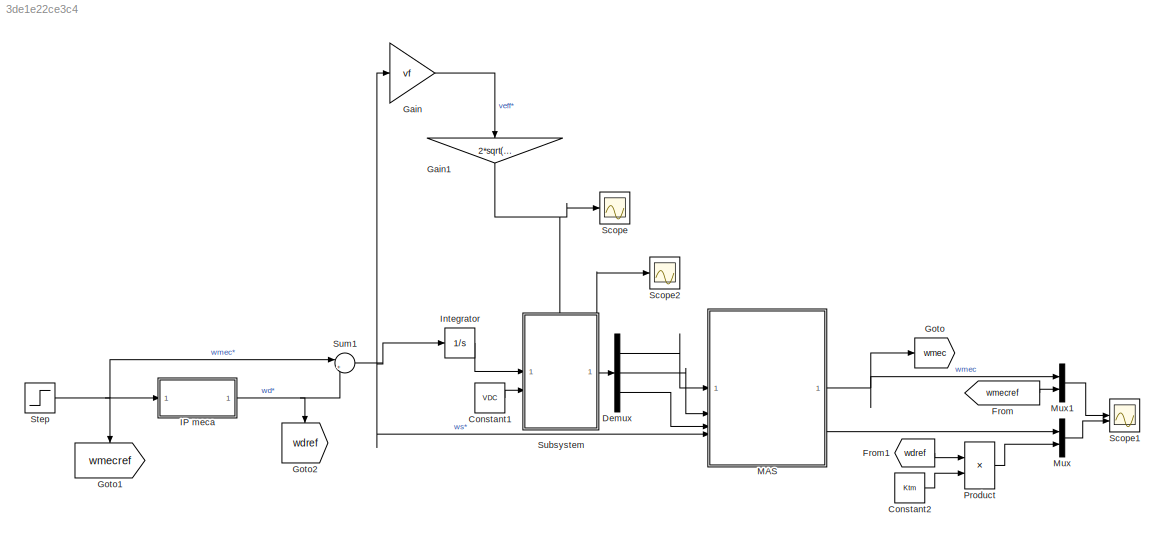
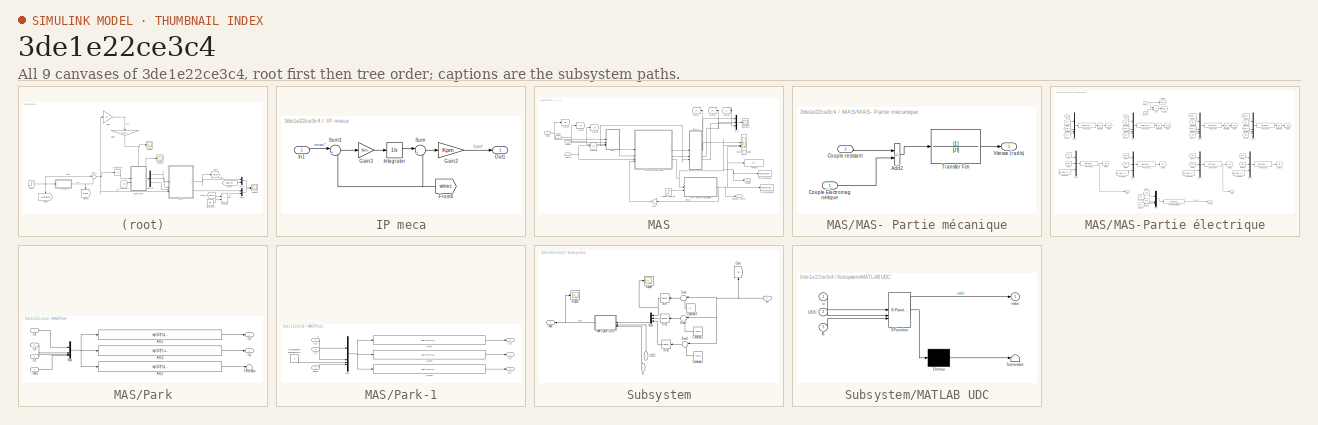
[diagram: thumbnail index - all 9 canvases of the model, root first then tree order]
MODEL slx_3de1e22ce3c4
KIND model
CONFIG AbsTol = auto
CONFIG EnableMultiTasking = off
CONFIG FixedStep = 1e-4
CONFIG MaxStep = auto
CONFIG MinStep = auto
CONFIG RelTol = 1e-3
CONFIG SampleTimeConstraint = Unconstrained
CONFIG SolverName = ode1
CONFIG StartTime = 0.0
CONFIG StopTime = 10.0
BLOCK [Constant] Constant1
  Value = VDC
BLOCK [Constant] Constant2
  Value = Ktm
BLOCK [Demux] Demux
  Outputs = 3
BLOCK [From] From
  GotoTag = wmecref
BLOCK [From] From1
  GotoTag = wdref
BLOCK [Gain] Gain
  Gain = vf
BLOCK [Gain] Gain1
  Gain = 2*sqrt(2)/VDC
  NameLocation = left
BLOCK [Goto] Goto
  GotoTag = wmec
  TagVisibility = global
BLOCK [Goto] Goto1
  GotoTag = wmecref
  NameLocation = left
BLOCK [Goto] Goto2
  GotoTag = wdref
  NameLocation = left
BLOCK [SubSystem] IP meca
BLOCK [From] IP meca/From6
  GotoTag = wmec
  NameLocation = top
  TagVisibility = global
BLOCK [Gain] IP meca/Gain2
  Gain = Kpm
BLOCK [Gain] IP meca/Gain3
  Gain = Kim
BLOCK [Inport] IP meca/In1
  IconDisplay = Signal name
BLOCK [Integrator] IP meca/Integrator
BLOCK [Outport] IP meca/Out1
  IconDisplay = Signal name
BLOCK [Sum] IP meca/Sum
  Inputs = |+-
BLOCK [Sum] IP meca/Sum3
  Inputs = |+-
BLOCK [Integrator] Integrator
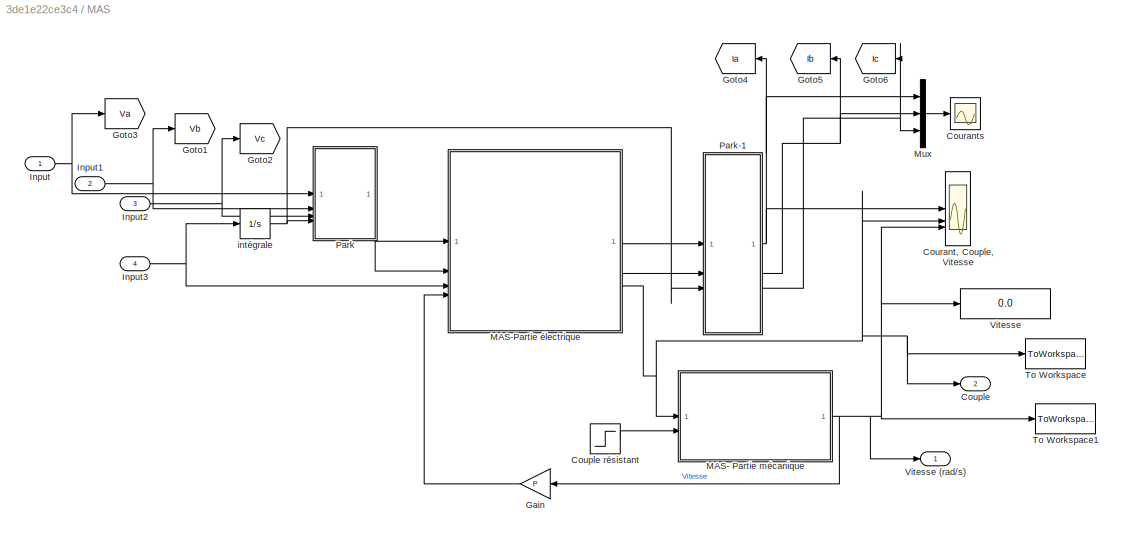
BLOCK [SubSystem] MAS
BLOCK [Outport] MAS/Couple
  IconDisplay = Signal name
  Port = 2
BLOCK [Step] MAS/Couple résistant
  After = 2
  SampleTime = 0
  Time = 6
BLOCK [Scope] MAS/Courant, Couple, Vitesse
  Floating = off
  NumInputPorts = 3
  ScopeSpecificationString = Simulink.scopes.TimeScopeBlockCfg('CurrentConfiguration', extmgr.ConfigurationSet(extmgr.Configuration('Core','General UI',true,'FigureColor',[1 1 1]),extmgr.Configuration('Core','Source UI',true),extmgr.Configuration('Sources','WiredSimulink',true,'DataLoggingVariableName','ScopeData1'),extmgr.Configuration('Visuals','Time Domain',true,'SerializedDisplays',{struct('MinYLimReal','-49.07838','MaxYL...<+3304ch>
BLOCK [Scope] MAS/Courants
  Floating = off
  NumInputPorts = 1
  ScopeSpecificationString = Simulink.scopes.TimeScopeBlockCfg('CurrentConfiguration', extmgr.ConfigurationSet(extmgr.Configuration('Core','General UI',true),extmgr.Configuration('Core','Source UI',true),extmgr.Configuration('Sources','WiredSimulink',true),extmgr.Configuration('Visuals','Time Domain',true,'SerializedDisplays',{struct('MinYLimReal','-78440392790425535894164667339636420366930210172161155543034117746784134921959...<+3148ch>
BLOCK [Gain] MAS/Gain
  Gain = P
BLOCK [Goto] MAS/Goto1
  GotoTag = Vb
BLOCK [Goto] MAS/Goto2
  GotoTag = Vc
BLOCK [Goto] MAS/Goto3
  GotoTag = Va
BLOCK [Goto] MAS/Goto4
  GotoTag = Ia
BLOCK [Goto] MAS/Goto5
  GotoTag = Ib
BLOCK [Goto] MAS/Goto6
  GotoTag = Ic
BLOCK [Inport] MAS/Input
  IconDisplay = Signal name
BLOCK [Inport] MAS/Input1
  IconDisplay = Signal name
  Port = 2
BLOCK [Inport] MAS/Input2
  IconDisplay = Signal name
  Port = 3
BLOCK [Inport] MAS/Input3
  IconDisplay = Signal name
  Port = 4
BLOCK [SubSystem] MAS/MAS- Partie mécanique
BLOCK [Sum] MAS/MAS- Partie mécanique/Add2
  IconShape = rectangular
  Inputs = -+
BLOCK [Inport] MAS/MAS- Partie mécanique/Couple Electromagnétique
BLOCK [Inport] MAS/MAS- Partie mécanique/Couple résistant
  Port = 2
BLOCK [TransferFcn] MAS/MAS- Partie mécanique/Transfer Fcn
  Denominator = [J f]
BLOCK [Outport] MAS/MAS- Partie mécanique/Vitesse (rad//s)
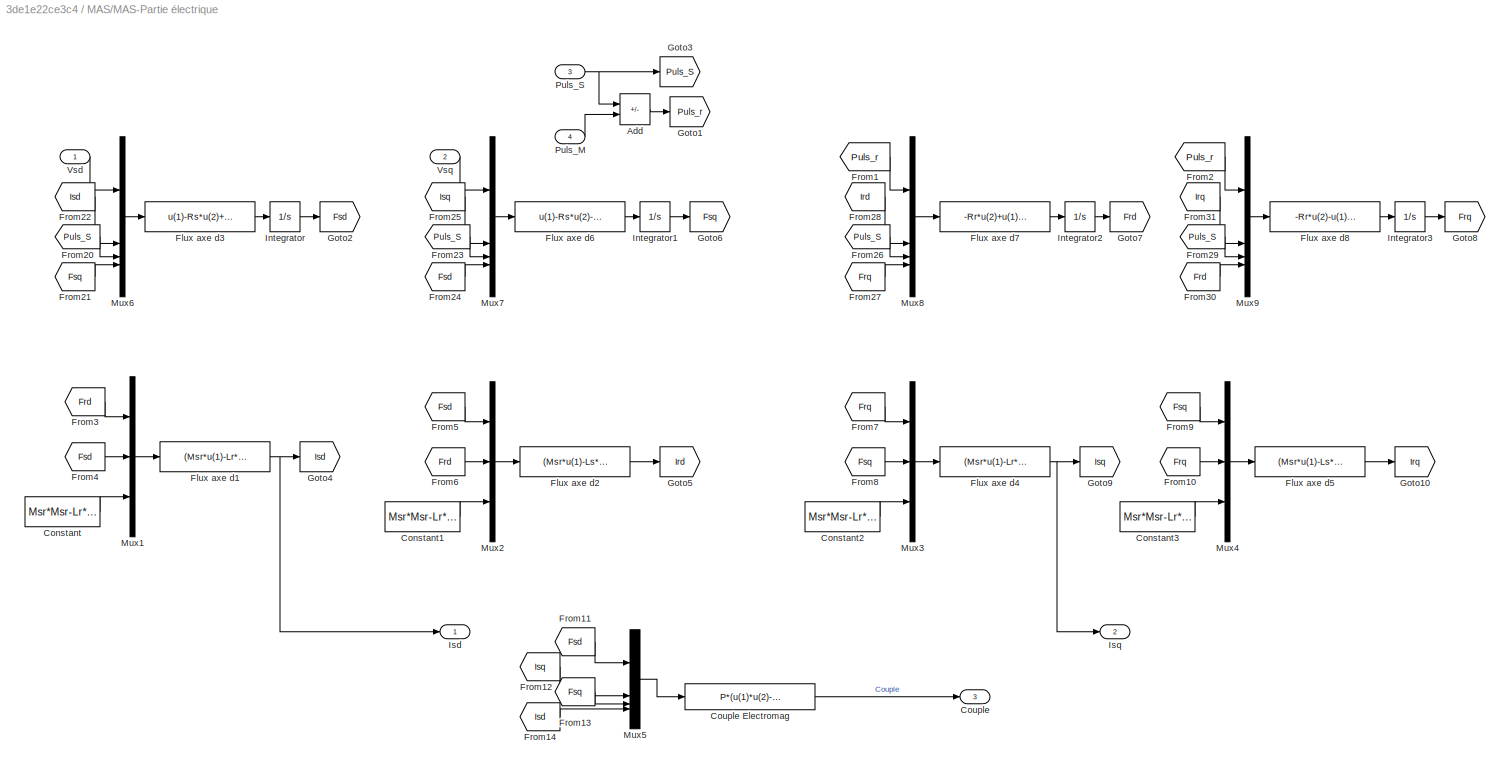
BLOCK [SubSystem] MAS/MAS-Partie électrique
BLOCK [Sum] MAS/MAS-Partie électrique/Add
  IconShape = rectangular
  Inputs = +-
BLOCK [Constant] MAS/MAS-Partie électrique/Constant
  Value = Msr*Msr-Lr*Ls
BLOCK [Constant] MAS/MAS-Partie électrique/Constant1
  Value = Msr*Msr-Lr*Ls
BLOCK [Constant] MAS/MAS-Partie électrique/Constant2
  Value = Msr*Msr-Lr*Ls
BLOCK [Constant] MAS/MAS-Partie électrique/Constant3
  Value = Msr*Msr-Lr*Ls
BLOCK [Outport] MAS/MAS-Partie électrique/Couple
  Port = 3
BLOCK [Fcn] MAS/MAS-Partie électrique/Couple Electromag
  Expr = P*(u(1)*u(2)-u(3)*u(4))
BLOCK [Fcn] MAS/MAS-Partie électrique/Flux axe d1
  Expr = (Msr*u(1)-Lr*u(2))/u(3)
BLOCK [Fcn] MAS/MAS-Partie électrique/Flux axe d2
  Expr = (Msr*u(1)-Ls*u(2))/u(3)
BLOCK [Fcn] MAS/MAS-Partie électrique/Flux axe d3
  Expr = u(1)-Rs*u(2)+u(3)*u(4)
BLOCK [Fcn] MAS/MAS-Partie électrique/Flux axe d4
  Expr = (Msr*u(1)-Lr*u(2))/u(3)
BLOCK [Fcn] MAS/MAS-Partie électrique/Flux axe d5
  Expr = (Msr*u(1)-Ls*u(2))/u(3)
BLOCK [Fcn] MAS/MAS-Partie électrique/Flux axe d6
  Expr = u(1)-Rs*u(2)-u(3)*u(4)
BLOCK [Fcn] MAS/MAS-Partie électrique/Flux axe d7
  Expr = -Rr*u(2)+u(1)*u(4)
BLOCK [Fcn] MAS/MAS-Partie électrique/Flux axe d8
  Expr = -Rr*u(2)-u(1)*u(4)
BLOCK [From] MAS/MAS-Partie électrique/From1
  GotoTag = Puls_r
BLOCK [From] MAS/MAS-Partie électrique/From10
  GotoTag = Frq
BLOCK [From] MAS/MAS-Partie électrique/From11
  GotoTag = Fsd
BLOCK [From] MAS/MAS-Partie électrique/From12
  GotoTag = Isq
BLOCK [From] MAS/MAS-Partie électrique/From13
  GotoTag = Fsq
BLOCK [From] MAS/MAS-Partie électrique/From14
  GotoTag = Isd
BLOCK [From] MAS/MAS-Partie électrique/From2
  GotoTag = Puls_r
BLOCK [From] MAS/MAS-Partie électrique/From20
  GotoTag = Puls_S
  IconDisplay = Signal name
BLOCK [From] MAS/MAS-Partie électrique/From21
  GotoTag = Fsq
BLOCK [From] MAS/MAS-Partie électrique/From22
  GotoTag = Isd
BLOCK [From] MAS/MAS-Partie électrique/From23
  GotoTag = Puls_S
  IconDisplay = Signal name
BLOCK [From] MAS/MAS-Partie électrique/From24
  GotoTag = Fsd
BLOCK [From] MAS/MAS-Partie électrique/From25
  GotoTag = Isq
BLOCK [From] MAS/MAS-Partie électrique/From26
  GotoTag = Puls_S
  IconDisplay = Signal name
BLOCK [From] MAS/MAS-Partie électrique/From27
  GotoTag = Frq
BLOCK [From] MAS/MAS-Partie électrique/From28
  GotoTag = Ird
BLOCK [From] MAS/MAS-Partie électrique/From29
  GotoTag = Puls_S
  IconDisplay = Signal name
BLOCK [From] MAS/MAS-Partie électrique/From3
  GotoTag = Frd
BLOCK [From] MAS/MAS-Partie électrique/From30
  GotoTag = Frd
BLOCK [From] MAS/MAS-Partie électrique/From31
  GotoTag = Irq
BLOCK [From] MAS/MAS-Partie électrique/From4
  GotoTag = Fsd
BLOCK [From] MAS/MAS-Partie électrique/From5
  GotoTag = Fsd
BLOCK [From] MAS/MAS-Partie électrique/From6
  GotoTag = Frd
BLOCK [From] MAS/MAS-Partie électrique/From7
  GotoTag = Frq
BLOCK [From] MAS/MAS-Partie électrique/From8
  GotoTag = Fsq
BLOCK [From] MAS/MAS-Partie électrique/From9
  GotoTag = Fsq
BLOCK [Goto] MAS/MAS-Partie électrique/Goto1
  GotoTag = Puls_r
BLOCK [Goto] MAS/MAS-Partie électrique/Goto10
  GotoTag = Irq
BLOCK [Goto] MAS/MAS-Partie électrique/Goto2
  GotoTag = Fsd
BLOCK [Goto] MAS/MAS-Partie électrique/Goto3
  GotoTag = Puls_S
BLOCK [Goto] MAS/MAS-Partie électrique/Goto4
  GotoTag = Isd
BLOCK [Goto] MAS/MAS-Partie électrique/Goto5
  GotoTag = Ird
BLOCK [Goto] MAS/MAS-Partie électrique/Goto6
  GotoTag = Fsq
BLOCK [Goto] MAS/MAS-Partie électrique/Goto7
  GotoTag = Frd
BLOCK [Goto] MAS/MAS-Partie électrique/Goto8
  GotoTag = Frq
BLOCK [Goto] MAS/MAS-Partie électrique/Goto9
  GotoTag = Isq
BLOCK [Integrator] MAS/MAS-Partie électrique/Integrator
BLOCK [Integrator] MAS/MAS-Partie électrique/Integrator1
BLOCK [Integrator] MAS/MAS-Partie électrique/Integrator2
BLOCK [Integrator] MAS/MAS-Partie électrique/Integrator3
BLOCK [Outport] MAS/MAS-Partie électrique/Isd
BLOCK [Outport] MAS/MAS-Partie électrique/Isq
  Port = 2
BLOCK [Mux] MAS/MAS-Partie électrique/Mux1
  DisplayOption = bar
  Inputs = 3
BLOCK [Mux] MAS/MAS-Partie électrique/Mux2
  DisplayOption = bar
  Inputs = 3
BLOCK [Mux] MAS/MAS-Partie électrique/Mux3
  DisplayOption = bar
  Inputs = 3
BLOCK [Mux] MAS/MAS-Partie électrique/Mux4
  DisplayOption = bar
  Inputs = 3
BLOCK [Mux] MAS/MAS-Partie électrique/Mux5
  DisplayOption = bar
BLOCK [Mux] MAS/MAS-Partie électrique/Mux6
  DisplayOption = bar
BLOCK [Mux] MAS/MAS-Partie électrique/Mux7
  DisplayOption = bar
BLOCK [Mux] MAS/MAS-Partie électrique/Mux8
  DisplayOption = bar
BLOCK [Mux] MAS/MAS-Partie électrique/Mux9
  DisplayOption = bar
BLOCK [Inport] MAS/MAS-Partie électrique/Puls_M
  Port = 4
BLOCK [Inport] MAS/MAS-Partie électrique/Puls_S
  Port = 3
BLOCK [Inport] MAS/MAS-Partie électrique/Vsd
BLOCK [Inport] MAS/MAS-Partie électrique/Vsq
  Port = 2
BLOCK [Mux] MAS/Mux
  DisplayOption = bar
  Inputs = 3
BLOCK [SubSystem] MAS/Park
BLOCK [SubSystem] MAS/Park-1
BLOCK [Fcn] MAS/Park-1/Axe_d
  Expr = sqrt(2/3)*(u(1)*cos(u(4))-u(2)*sin(u(4))+u(3)*(1/sqrt(2)))
BLOCK [Fcn] MAS/Park-1/Axe_d1
  Expr = sqrt(2/3)*(u(1)*cos(u(4)-2*pi/3)-u(2)*sin(u(4)-2*pi/3)+u(3)*(1/sqrt(2)))
BLOCK [Fcn] MAS/Park-1/Axe_d2
  Expr = sqrt(2/3)*(u(1)*cos(u(4)+2*pi/3)-u(2)*sin(u(4)+2*pi/3)+u(3)*(1/sqrt(2)))
BLOCK [Constant] MAS/Park-1/Composante homopolaire
  Value = 0
BLOCK [Mux] MAS/Park-1/Mux
  DisplayOption = bar
BLOCK [Inport] MAS/Park-1/Theta
  Port = 3
BLOCK [Outport] MAS/Park-1/x_a
BLOCK [Outport] MAS/Park-1/x_b
  Port = 2
BLOCK [Outport] MAS/Park-1/x_c
  Port = 3
BLOCK [Inport] MAS/Park-1/x_d
BLOCK [Inport] MAS/Park-1/x_q
  Port = 2
BLOCK [Fcn] MAS/Park/ Axe_h
  Expr = sqrt(2/3)*(u(1)*(1/sqrt(2))+u(2)*(1/sqrt(2))+u(3)*(1/sqrt(2)))
BLOCK [Fcn] MAS/Park/ Axe_q
  Expr = sqrt(2/3)*(-u(1)*sin(u(4))-u(2)*sin(u(4)-2*pi/3)-u(3)*sin(u(4)-4*pi/3))
BLOCK [Fcn] MAS/Park/Axe_d
  Expr = sqrt(2/3)*(u(1)*cos(u(4))+u(2)*cos(u(4)-2*pi/3)+u(3)*cos(u(4)-4*pi/3))
BLOCK [Mux] MAS/Park/Mux
  DisplayOption = bar
BLOCK [Terminator] MAS/Park/Terminator
BLOCK [Inport] MAS/Park/Theta
  Port = 4
BLOCK [Inport] MAS/Park/x_a
BLOCK [Inport] MAS/Park/x_b
  Port = 2
BLOCK [Inport] MAS/Park/x_c
  Port = 3
BLOCK [Outport] MAS/Park/x_d
BLOCK [Outport] MAS/Park/x_q
  Port = 2
BLOCK [ToWorkspace] MAS/To Workspace
  FixptAsFi = on
  MaxDataPoints = inf
  SampleTime = -1
  Save2DSignal = 2-D array (concatenate along first dimension)
  VariableName = Couple
BLOCK [ToWorkspace] MAS/To Workspace1
  FixptAsFi = on
  MaxDataPoints = inf
  SampleTime = -1
  Save2DSignal = 2-D array (concatenate along first dimension)
  VariableName = Vitesse
BLOCK [Display] MAS/Vitesse
  Decimation = 1
BLOCK [Outport] MAS/Vitesse (rad//s)
  IconDisplay = Signal name
BLOCK [Integrator] MAS/intégrale
BLOCK [Mux] Mux
  DisplayOption = bar
  Inputs = 2
BLOCK [Mux] Mux1
  DisplayOption = bar
  Inputs = 2
BLOCK [Product] Product
BLOCK [Scope] Scope
  Floating = off
  NumInputPorts = 1
  ScopeSpecificationString = Simulink.scopes.TimeScopeBlockCfg('CurrentConfiguration', extmgr.ConfigurationSet(extmgr.Configuration('Core','General UI',true),extmgr.Configuration('Core','Source UI',true),extmgr.Configuration('Sources','WiredSimulink',true,'DataLoggingVariableName','ScopeData2'),extmgr.Configuration('Visuals','Time Domain',true,'SerializedDisplays',{struct('MinYLimReal','-34123693119969267401842254822558452925...<+2718ch>
BLOCK [Scope] Scope1
  Floating = off
  NumInputPorts = 2
  ScopeSpecificationString = Simulink.scopes.TimeScopeBlockCfg('CurrentConfiguration', extmgr.ConfigurationSet(extmgr.Configuration('Core','General UI',true),extmgr.Configuration('Core','Source UI',true),extmgr.Configuration('Sources','WiredSimulink',true,'DataLoggingVariableName','ScopeData4'),extmgr.Configuration('Visuals','Time Domain',true,'SerializedDisplays',{struct('MinYLimReal','-74202784302785845761277178562136975917...<+3372ch>
BLOCK [Scope] Scope2
  Floating = off
  NumInputPorts = 1
  ScopeSpecificationString = Simulink.scopes.TimeScopeBlockCfg('CurrentConfiguration', extmgr.ConfigurationSet(extmgr.Configuration('Core','General UI',true),extmgr.Configuration('Core','Source UI',true),extmgr.Configuration('Sources','WiredSimulink',true,'DataLoggingVariableName','ScopeData1'),extmgr.Configuration('Visuals','Time Domain',true,'SerializedDisplays',{struct('MinYLimReal','-550.34159','MaxYLimReal','547.14116','...<+1460ch>
BLOCK [Step] Step
  After = 100
  SampleTime = 0
  Time = 4
BLOCK [SubSystem] Subsystem
  PortSchema = {"entries":[{"content":{"sides":[{"content":{"connectorIds":["In1","In2"]},"type":"ConnectorPlacement.EquallySpacedRectSide","uuid":"b96697a1-7390-4a4c-a090-1d4840f94579"},{"content":{"connectorIds":["Out1"],"side":"RIGHT"},"type":"ConnectorPlacement.EquallySpacedRectSide","uuid":"06d1d8c6-d481-421b-9786-6ed8bea33fb5"},{"content":{"connectorIds":["In3"],"side":"TOP"},"type":"ConnectorPlacement.Equ...<+251ch>
BLOCK [Inport] Subsystem/B
  NameLocation = right
  Port = 3
BLOCK [Constant] Subsystem/Constant1
  NameLocation = top
  Value = -4*pi/3
BLOCK [Constant] Subsystem/Constant2
  NameLocation = top
  Value = -2*pi/3
BLOCK [Constant] Subsystem/Constant3
  NameLocation = top
  Value = 0
BLOCK [Goto] Subsystem/Goto
  GotoTag = wt
  NameLocation = right
  TagVisibility = global
BLOCK [SubSystem] Subsystem/MATLAB UDC
  ErrorFcn = Stateflow.Translate.translate
  NameLocation = top
  PermitHierarchicalResolution = ExplicitOnly
  SFBlockType = MATLAB Function
  TreatAsAtomicUnit = on
BLOCK [Demux] Subsystem/MATLAB UDC/ Demux 
  Outputs = 1
BLOCK [S-Function] Subsystem/MATLAB UDC/ SFunction 
  EnableBusSupport = on
  FunctionName = sf_sfun
  PortCounts = [3 2]
  SFcnIsStateOwnerBlock = off
  SFunctionDeploymentMode = off
  Tag = Stateflow S-Function 1
BLOCK [Terminator] Subsystem/MATLAB UDC/ Terminator 
BLOCK [Inport] Subsystem/MATLAB UDC/B
  Port = 3
BLOCK [Inport] Subsystem/MATLAB UDC/UDC
  Port = 2
BLOCK [Inport] Subsystem/MATLAB UDC/u
BLOCK [Outport] Subsystem/MATLAB UDC/vabc
BLOCK [Mux] Subsystem/Mux
  DisplayOption = bar
  Inputs = 3
  NameLocation = top
BLOCK [Scope] Subsystem/Scope
  Floating = off
  NumInputPorts = 1
  ScopeSpecificationString = Simulink.scopes.TimeScopeBlockCfg('CurrentConfiguration', extmgr.ConfigurationSet(extmgr.Configuration('Core','General UI',true),extmgr.Configuration('Core','Source UI',true),extmgr.Configuration('Sources','WiredSimulink',true,'DataLoggingVariableName','ScopeData3'),extmgr.Configuration('Visuals','Time Domain',true,'SerializedDisplays',{struct('MinYLimReal','-1.25','MaxYLimReal','1.25','YLabelReal...<+1344ch>
BLOCK [Scope] Subsystem/Scope1
  Floating = off
  NumInputPorts = 1
  ScopeSpecificationString = Simulink.scopes.TimeScopeBlockCfg('CurrentConfiguration', extmgr.ConfigurationSet(extmgr.Configuration('Core','General UI',true),extmgr.Configuration('Core','Source UI',true),extmgr.Configuration('Sources','WiredSimulink',true,'DataLoggingVariableName','ScopeData5'),extmgr.Configuration('Visuals','Time Domain',true,'SerializedDisplays',{struct('MinYLimReal','-3237.0575','MaxYLimReal','3092.72274',...<+1449ch>
BLOCK [Trigonometry] Subsystem/Sin
  NameLocation = top
BLOCK [Trigonometry] Subsystem/Sin1
  NameLocation = top
BLOCK [Trigonometry] Subsystem/Sin2
  NameLocation = top
BLOCK [Sum] Subsystem/Sum
  Inputs = |+-
  NameLocation = top
BLOCK [Sum] Subsystem/Sum1
  Inputs = |+-
  NameLocation = top
BLOCK [Sum] Subsystem/Sum2
  Inputs = |+-
  NameLocation = top
BLOCK [Inport] Subsystem/UDC
  NameLocation = right
  Port = 2
BLOCK [Outport] Subsystem/vabc
BLOCK [Inport] Subsystem/wt
BLOCK [Sum] Sum1
  Inputs = |++
  NameLocation = top
ANNOTATION MAS/Park-1: d
LINE Constant1:1 -> Subsystem:2
LINE Constant2:1 -> Product:2
LINE Demux:1 -> MAS:1
LINE Demux:2 -> MAS:2
LINE Demux:3 -> MAS:3
LINE From1:1 -> Product:1
LINE From:1 -> Mux1:2
NET Gain1:1 -> Scope:1, Subsystem:3
LINE Gain:1 -> Gain1:1
NET IP meca/From6:1 -> IP meca/Sum3:2, IP meca/Sum:2
LINE IP meca/Gain2:1 -> IP meca/Out1:1
LINE IP meca/Gain3:1 -> IP meca/Integrator:1
LINE IP meca/In1:1 -> IP meca/Sum3:1
LINE IP meca/Integrator:1 -> IP meca/Sum:1
LINE IP meca/Sum3:1 -> IP meca/Gain3:1
LINE IP meca/Sum:1 -> IP meca/Gain2:1
NET IP meca:1 -> Goto2:1, Sum1:2
LINE Integrator:1 -> Subsystem:1
LINE MAS/Couple résistant:1 -> MAS/MAS- Partie mécanique:2
LINE MAS/Gain:1 -> MAS/MAS-Partie électrique:4
NET MAS/Input1:1 -> MAS/Goto1:1, MAS/Park:2
NET MAS/Input2:1 -> MAS/Goto2:1, MAS/Park:3
NET MAS/Input3:1 -> MAS/MAS-Partie électrique:3, MAS/intégrale:1
NET MAS/Input:1 -> MAS/Goto3:1, MAS/Park:1
LINE MAS/MAS- Partie mécanique/Add2:1 -> MAS/MAS- Partie mécanique/Transfer Fcn:1
LINE MAS/MAS- Partie mécanique/Couple Electromagnétique:1 -> MAS/MAS- Partie mécanique/Add2:2
LINE MAS/MAS- Partie mécanique/Couple résistant:1 -> MAS/MAS- Partie mécanique/Add2:1
LINE MAS/MAS- Partie mécanique/Transfer Fcn:1 -> MAS/MAS- Partie mécanique/Vitesse (rad//s):1
NET MAS/MAS- Partie mécanique:1 -> MAS/Courant, Couple, Vitesse:3, MAS/Gain:1, MAS/To Workspace1:1, MAS/Vitesse (rad//s):1, MAS/Vitesse:1
LINE MAS/MAS-Partie électrique/Add:1 -> MAS/MAS-Partie électrique/Goto1:1
LINE MAS/MAS-Partie électrique/Constant1:1 -> MAS/MAS-Partie électrique/Mux2:3
LINE MAS/MAS-Partie électrique/Constant2:1 -> MAS/MAS-Partie électrique/Mux3:3
LINE MAS/MAS-Partie électrique/Constant3:1 -> MAS/MAS-Partie électrique/Mux4:3
LINE MAS/MAS-Partie électrique/Constant:1 -> MAS/MAS-Partie électrique/Mux1:3
LINE MAS/MAS-Partie électrique/Couple Electromag:1 -> MAS/MAS-Partie électrique/Couple:1
NET MAS/MAS-Partie électrique/Flux axe d1:1 -> MAS/MAS-Partie électrique/Goto4:1, MAS/MAS-Partie électrique/Isd:1
LINE MAS/MAS-Partie électrique/Flux axe d2:1 -> MAS/MAS-Partie électrique/Goto5:1
LINE MAS/MAS-Partie électrique/Flux axe d3:1 -> MAS/MAS-Partie électrique/Integrator:1
NET MAS/MAS-Partie électrique/Flux axe d4:1 -> MAS/MAS-Partie électrique/Goto9:1, MAS/MAS-Partie électrique/Isq:1
LINE MAS/MAS-Partie électrique/Flux axe d5:1 -> MAS/MAS-Partie électrique/Goto10:1
LINE MAS/MAS-Partie électrique/Flux axe d6:1 -> MAS/MAS-Partie électrique/Integrator1:1
LINE MAS/MAS-Partie électrique/Flux axe d7:1 -> MAS/MAS-Partie électrique/Integrator2:1
LINE MAS/MAS-Partie électrique/Flux axe d8:1 -> MAS/MAS-Partie électrique/Integrator3:1
LINE MAS/MAS-Partie électrique/From10:1 -> MAS/MAS-Partie électrique/Mux4:2
LINE MAS/MAS-Partie électrique/From11:1 -> MAS/MAS-Partie électrique/Mux5:1
LINE MAS/MAS-Partie électrique/From12:1 -> MAS/MAS-Partie électrique/Mux5:2
LINE MAS/MAS-Partie électrique/From13:1 -> MAS/MAS-Partie électrique/Mux5:3
LINE MAS/MAS-Partie électrique/From14:1 -> MAS/MAS-Partie électrique/Mux5:4
LINE MAS/MAS-Partie électrique/From1:1 -> MAS/MAS-Partie électrique/Mux8:1
LINE MAS/MAS-Partie électrique/From20:1 -> MAS/MAS-Partie électrique/Mux6:3
LINE MAS/MAS-Partie électrique/From21:1 -> MAS/MAS-Partie électrique/Mux6:4
LINE MAS/MAS-Partie électrique/From22:1 -> MAS/MAS-Partie électrique/Mux6:2
LINE MAS/MAS-Partie électrique/From23:1 -> MAS/MAS-Partie électrique/Mux7:3
LINE MAS/MAS-Partie électrique/From24:1 -> MAS/MAS-Partie électrique/Mux7:4
LINE MAS/MAS-Partie électrique/From25:1 -> MAS/MAS-Partie électrique/Mux7:2
LINE MAS/MAS-Partie électrique/From26:1 -> MAS/MAS-Partie électrique/Mux8:3
LINE MAS/MAS-Partie électrique/From27:1 -> MAS/MAS-Partie électrique/Mux8:4
LINE MAS/MAS-Partie électrique/From28:1 -> MAS/MAS-Partie électrique/Mux8:2
LINE MAS/MAS-Partie électrique/From29:1 -> MAS/MAS-Partie électrique/Mux9:3
LINE MAS/MAS-Partie électrique/From2:1 -> MAS/MAS-Partie électrique/Mux9:1
LINE MAS/MAS-Partie électrique/From30:1 -> MAS/MAS-Partie électrique/Mux9:4
LINE MAS/MAS-Partie électrique/From31:1 -> MAS/MAS-Partie électrique/Mux9:2
LINE MAS/MAS-Partie électrique/From3:1 -> MAS/MAS-Partie électrique/Mux1:1
LINE MAS/MAS-Partie électrique/From4:1 -> MAS/MAS-Partie électrique/Mux1:2
LINE MAS/MAS-Partie électrique/From5:1 -> MAS/MAS-Partie électrique/Mux2:1
LINE MAS/MAS-Partie électrique/From6:1 -> MAS/MAS-Partie électrique/Mux2:2
LINE MAS/MAS-Partie électrique/From7:1 -> MAS/MAS-Partie électrique/Mux3:1
LINE MAS/MAS-Partie électrique/From8:1 -> MAS/MAS-Partie électrique/Mux3:2
LINE MAS/MAS-Partie électrique/From9:1 -> MAS/MAS-Partie électrique/Mux4:1
LINE MAS/MAS-Partie électrique/Integrator1:1 -> MAS/MAS-Partie électrique/Goto6:1
LINE MAS/MAS-Partie électrique/Integrator2:1 -> MAS/MAS-Partie électrique/Goto7:1
LINE MAS/MAS-Partie électrique/Integrator3:1 -> MAS/MAS-Partie électrique/Goto8:1
LINE MAS/MAS-Partie électrique/Integrator:1 -> MAS/MAS-Partie électrique/Goto2:1
LINE MAS/MAS-Partie électrique/Mux1:1 -> MAS/MAS-Partie électrique/Flux axe d1:1
LINE MAS/MAS-Partie électrique/Mux2:1 -> MAS/MAS-Partie électrique/Flux axe d2:1
LINE MAS/MAS-Partie électrique/Mux3:1 -> MAS/MAS-Partie électrique/Flux axe d4:1
LINE MAS/MAS-Partie électrique/Mux4:1 -> MAS/MAS-Partie électrique/Flux axe d5:1
LINE MAS/MAS-Partie électrique/Mux5:1 -> MAS/MAS-Partie électrique/Couple Electromag:1
LINE MAS/MAS-Partie électrique/Mux6:1 -> MAS/MAS-Partie électrique/Flux axe d3:1
LINE MAS/MAS-Partie électrique/Mux7:1 -> MAS/MAS-Partie électrique/Flux axe d6:1
LINE MAS/MAS-Partie électrique/Mux8:1 -> MAS/MAS-Partie électrique/Flux axe d7:1
LINE MAS/MAS-Partie électrique/Mux9:1 -> MAS/MAS-Partie électrique/Flux axe d8:1
LINE MAS/MAS-Partie électrique/Puls_M:1 -> MAS/MAS-Partie électrique/Add:2
NET MAS/MAS-Partie électrique/Puls_S:1 -> MAS/MAS-Partie électrique/Add:1, MAS/MAS-Partie électrique/Goto3:1
LINE MAS/MAS-Partie électrique/Vsd:1 -> MAS/MAS-Partie électrique/Mux6:1
LINE MAS/MAS-Partie électrique/Vsq:1 -> MAS/MAS-Partie électrique/Mux7:1
LINE MAS/MAS-Partie électrique:1 -> MAS/Park-1:1
LINE MAS/MAS-Partie électrique:2 -> MAS/Park-1:2
NET MAS/MAS-Partie électrique:3 -> MAS/Couple:1, MAS/Courant, Couple, Vitesse:2, MAS/MAS- Partie mécanique:1, MAS/To Workspace:1
LINE MAS/Mux:1 -> MAS/Courants:1
LINE MAS/Park-1/Axe_d1:1 -> MAS/Park-1/x_b:1
LINE MAS/Park-1/Axe_d2:1 -> MAS/Park-1/x_c:1
LINE MAS/Park-1/Axe_d:1 -> MAS/Park-1/x_a:1
LINE MAS/Park-1/Composante homopolaire:1 -> MAS/Park-1/Mux:3
NET MAS/Park-1/Mux:1 -> MAS/Park-1/Axe_d1:1, MAS/Park-1/Axe_d2:1, MAS/Park-1/Axe_d:1
LINE MAS/Park-1/Theta:1 -> MAS/Park-1/Mux:4
LINE MAS/Park-1/x_d:1 -> MAS/Park-1/Mux:1
LINE MAS/Park-1/x_q:1 -> MAS/Park-1/Mux:2
NET MAS/Park-1:1 -> MAS/Courant, Couple, Vitesse:1, MAS/Goto4:1, MAS/Mux:1
NET MAS/Park-1:2 -> MAS/Goto5:1, MAS/Mux:2
NET MAS/Park-1:3 -> MAS/Goto6:1, MAS/Mux:3
LINE MAS/Park/ Axe_h:1 -> MAS/Park/Terminator:1
LINE MAS/Park/ Axe_q:1 -> MAS/Park/x_q:1
LINE MAS/Park/Axe_d:1 -> MAS/Park/x_d:1
NET MAS/Park/Mux:1 -> MAS/Park/ Axe_h:1, MAS/Park/ Axe_q:1, MAS/Park/Axe_d:1
LINE MAS/Park/Theta:1 -> MAS/Park/Mux:4
LINE MAS/Park/x_a:1 -> MAS/Park/Mux:1
LINE MAS/Park/x_b:1 -> MAS/Park/Mux:2
LINE MAS/Park/x_c:1 -> MAS/Park/Mux:3
LINE MAS/Park:1 -> MAS/MAS-Partie électrique:1
LINE MAS/Park:2 -> MAS/MAS-Partie électrique:2
NET MAS/intégrale:1 -> MAS/Park-1:3, MAS/Park:4
NET MAS:1 -> Goto:1, Mux1:1
LINE MAS:2 -> Mux:1
LINE Mux1:1 -> Scope1:1
LINE Mux:1 -> Scope1:2
LINE Product:1 -> Mux:2
NET Step:1 -> Goto1:1, IP meca:1, Sum1:1
LINE Subsystem/B:1 -> Subsystem/MATLAB UDC:3
LINE Subsystem/Constant1:1 -> Subsystem/Sum2:2
LINE Subsystem/Constant2:1 -> Subsystem/Sum1:2
LINE Subsystem/Constant3:1 -> Subsystem/Sum:2
NET Subsystem/MATLAB UDC:1 -> Subsystem/Scope1:1, Subsystem/vabc:1
LINE Subsystem/Mux:1 -> Subsystem/MATLAB UDC:1
LINE Subsystem/Sin1:1 -> Subsystem/Mux:2
LINE Subsystem/Sin2:1 -> Subsystem/Mux:3
NET Subsystem/Sin:1 -> Subsystem/Mux:1, Subsystem/Scope:1
LINE Subsystem/Sum1:1 -> Subsystem/Sin1:1
LINE Subsystem/Sum2:1 -> Subsystem/Sin2:1
LINE Subsystem/Sum:1 -> Subsystem/Sin:1
LINE Subsystem/UDC:1 -> Subsystem/MATLAB UDC:2
NET Subsystem/wt:1 -> Subsystem/Goto:1, Subsystem/Sum1:1, Subsystem/Sum2:1, Subsystem/Sum:1
NET Subsystem:1 -> Demux:1, Scope2:1
NET Sum1:1 -> Gain:1, Integrator:1, MAS:4
note: NET lines group one-source signal fan-out (src -> all destinations, sorted); 1:1 wires keep LINE
CHART Subsystem/MATLAB UDC states=1 transitions=1
  STATE_LABEL 'eML_blk_kernel()'
  STATE_LABEL 'SCRIPT:\nfunction vabc = gain(u,UDC,B)\n\n\nvabc =0.5*UDC*B*u;\n\n'
CHART  states=0 transitions=0
